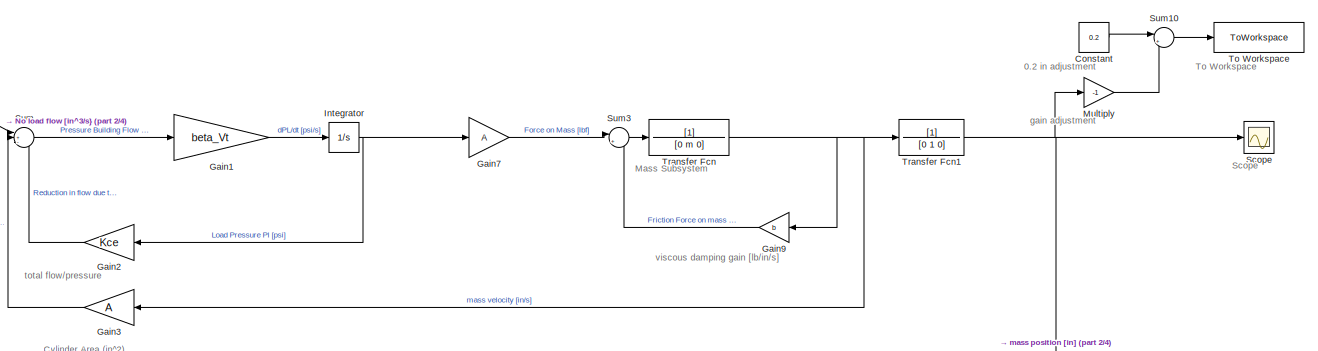
[diagram: root canvas - part 1/4, top right region]
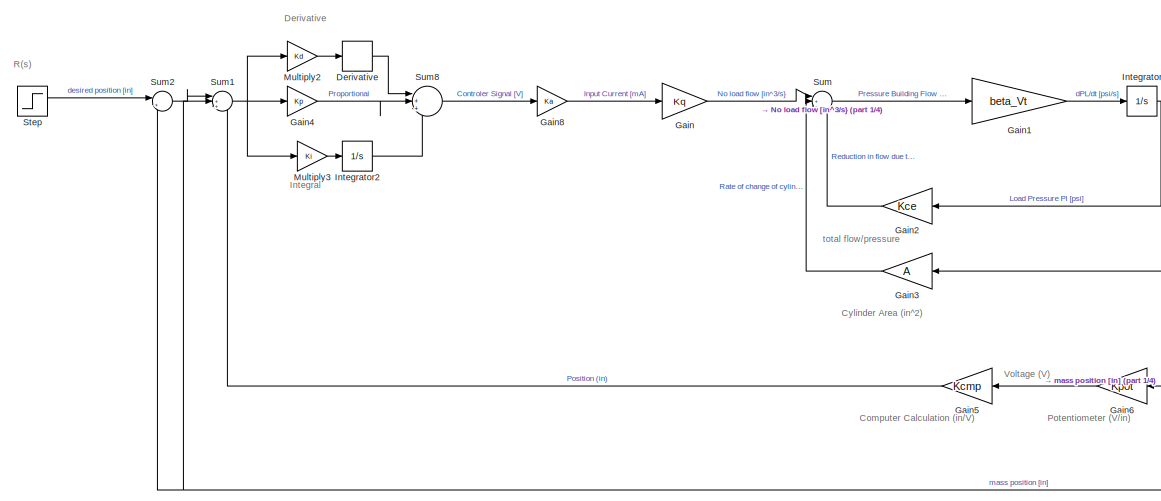
[diagram: root canvas - part 2/4, top left region]
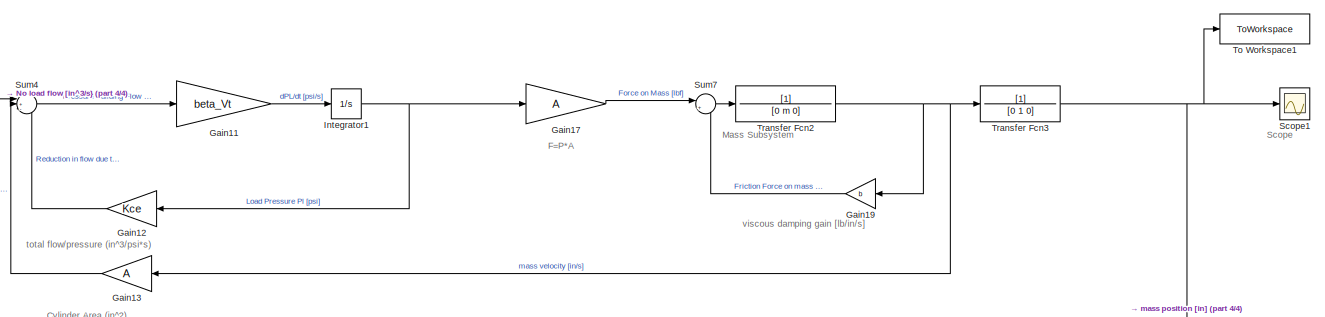
[diagram: root canvas - part 3/4, bottom right region]
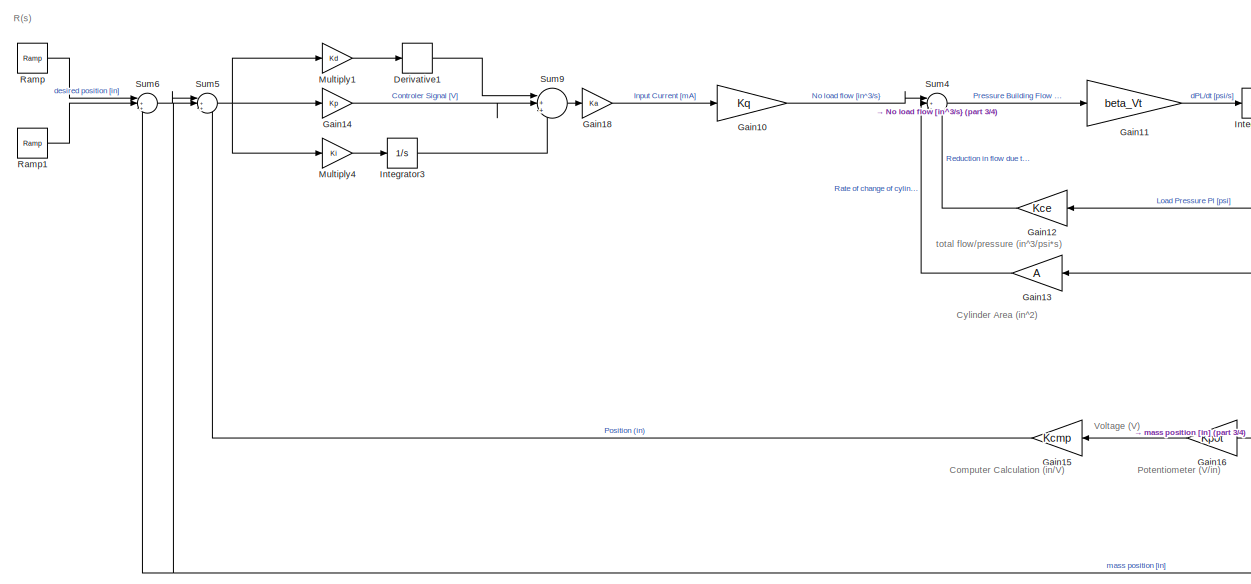
[diagram: root canvas - part 4/4, bottom left region]
MODEL slx_18d2e19fb843
KIND model
CONFIG AbsTol = auto
CONFIG EnableMultiTasking = off
CONFIG FixedStep = auto
CONFIG MaxStep = auto
CONFIG MinStep = auto
CONFIG RelTol = 1e-9
CONFIG SampleTimeConstraint = Unconstrained
CONFIG SolverName = VariableStepAuto
CONFIG StartTime = 0.0
CONFIG StopTime = 50
BLOCK [Constant] Constant
  Value = 0.2
BLOCK [Derivative] Derivative
BLOCK [Derivative] Derivative1
BLOCK [Gain] Gain
  Gain = Kq
BLOCK [Gain] Gain1
  Gain = beta_Vt
BLOCK [Gain] Gain10
  Gain = Kq
BLOCK [Gain] Gain11
  Gain = beta_Vt
BLOCK [Gain] Gain12
  Gain = Kce
BLOCK [Gain] Gain13
  Gain = A
BLOCK [Gain] Gain14
  Gain = Kp
BLOCK [Gain] Gain15
  Gain = Kcmp
BLOCK [Gain] Gain16
  Gain = Kpot
BLOCK [Gain] Gain17
  Gain = A
BLOCK [Gain] Gain18
  Gain = Ka
BLOCK [Gain] Gain19
  Gain = b
BLOCK [Gain] Gain2
  Gain = Kce
BLOCK [Gain] Gain3
  Gain = A
BLOCK [Gain] Gain4
  Gain = Kp
BLOCK [Gain] Gain5
  Gain = Kcmp
BLOCK [Gain] Gain6
  Gain = Kpot
BLOCK [Gain] Gain7
  Gain = A
BLOCK [Gain] Gain8
  Gain = Ka
BLOCK [Gain] Gain9
  Gain = b
BLOCK [Integrator] Integrator
BLOCK [Integrator] Integrator1
BLOCK [Integrator] Integrator2
BLOCK [Integrator] Integrator3
BLOCK [Gain] Multiply
  Gain = -1
BLOCK [Gain] Multiply1
  Gain = Kd
BLOCK [Gain] Multiply2
  Gain = Kd
BLOCK [Gain] Multiply3
  Gain = Ki
BLOCK [Gain] Multiply4
  Gain = Ki
BLOCK [Reference] Ramp  REF=simulink/Sources/Ramp
  SourceBlock = simulink/Sources/Ramp
  SourceType = Ramp
BLOCK [Reference] Ramp1  REF=simulink/Sources/Ramp
  SourceBlock = simulink/Sources/Ramp
  SourceType = Ramp
BLOCK [Scope] Scope
  Floating = off
  NumInputPorts = 1
  ScopeSpecificationString = Simulink.scopes.TimeScopeBlockCfg('CurrentConfiguration', extmgr.ConfigurationSet(extmgr.Configuration('Core','General UI',true),extmgr.Configuration('Core','Source UI',true),extmgr.Configuration('Sources','WiredSimulink',true),extmgr.Configuration('Visuals','Time Domain',true,'SerializedDisplays',{struct('MinYLimReal','-0.12506','MaxYLimReal','1.12557','YLabelReal','','MinYLimMag','0.00000','MaxY...<+1361ch>
BLOCK [Scope] Scope1
  Floating = off
  NumInputPorts = 1
  ScopeSpecificationString = Simulink.scopes.TimeScopeBlockCfg('CurrentConfiguration', extmgr.ConfigurationSet(extmgr.Configuration('Core','General UI',true),extmgr.Configuration('Core','Source UI',true),extmgr.Configuration('Sources','WiredSimulink',true,'DataLoggingVariableName','ScopeData1'),extmgr.Configuration('Visuals','Time Domain',true,'SerializedDisplays',{struct('MinYLimReal','-0.12506','MaxYLimReal','1.12557','YLab...<+1400ch>
BLOCK [Step] Step
  After = 0.2
  SampleTime = 0
  Time = 2
BLOCK [Sum] Sum
  Inputs = |+--
BLOCK [Sum] Sum1
  Inputs = |++-
BLOCK [Sum] Sum10
  Inputs = |++
BLOCK [Sum] Sum2
  Inputs = |+-
BLOCK [Sum] Sum3
  Inputs = |+-
BLOCK [Sum] Sum4
  Inputs = |+--
BLOCK [Sum] Sum5
  Inputs = |++-
BLOCK [Sum] Sum6
  Inputs = |++-
BLOCK [Sum] Sum7
  Inputs = |+-
BLOCK [Sum] Sum8
  Inputs = |+++
BLOCK [Sum] Sum9
  Inputs = |+++
BLOCK [ToWorkspace] To Workspace
  FixptAsFi = on
  MaxDataPoints = inf
  SampleTime = -1
  VariableName = step
BLOCK [ToWorkspace] To Workspace1
  FixptAsFi = on
  MaxDataPoints = inf
  SampleTime = -1
  VariableName = ramp
BLOCK [TransferFcn] Transfer Fcn
  Denominator = [0 m 0]
BLOCK [TransferFcn] Transfer Fcn1
  Denominator = [0 1 0]
BLOCK [TransferFcn] Transfer Fcn2
  Denominator = [0 m 0]
BLOCK [TransferFcn] Transfer Fcn3
  Denominator = [0 1 0]
ANNOTATION (root): 0.2 in adjustment
ANNOTATION (root): Computer Calculation (in/V)
ANNOTATION (root): Cylinder Area (in^2)
ANNOTATION (root): Derivative
ANNOTATION (root): F=P*A
ANNOTATION (root): Integral
ANNOTATION (root): Mass Subsystem
ANNOTATION (root): Potentiometer (V/in)
ANNOTATION (root): R(s)
ANNOTATION (root): Scope
ANNOTATION (root): To Workspace
ANNOTATION (root): Voltage (V)
ANNOTATION (root): gain adjustment
ANNOTATION (root): total flow/pressure
ANNOTATION (root): total flow/pressure (in^3/psi*s)
ANNOTATION (root): viscous damping gain [lb/in/s]
LINE Constant:1 -> Sum10:1
LINE Derivative1:1 -> Sum9:1
LINE Derivative:1 -> Sum8:1
LINE Gain10:1 -> Sum4:1
LINE Gain11:1 -> Integrator1:1
LINE Gain12:1 -> Sum4:3
LINE Gain13:1 -> Sum4:2
LINE Gain14:1 -> Sum9:2
LINE Gain15:1 -> Sum5:3
LINE Gain16:1 -> Gain15:1
LINE Gain17:1 -> Sum7:1
LINE Gain18:1 -> Gain10:1
LINE Gain19:1 -> Sum7:2
LINE Gain1:1 -> Integrator:1
LINE Gain2:1 -> Sum:3
LINE Gain3:1 -> Sum:2
LINE Gain4:1 -> Sum8:2
LINE Gain5:1 -> Sum1:3
LINE Gain6:1 -> Gain5:1
LINE Gain7:1 -> Sum3:1
LINE Gain8:1 -> Gain:1
LINE Gain9:1 -> Sum3:2
LINE Gain:1 -> Sum:1
NET Integrator1:1 -> Gain12:1, Gain17:1
LINE Integrator2:1 -> Sum8:3
LINE Integrator3:1 -> Sum9:3
NET Integrator:1 -> Gain2:1, Gain7:1
LINE Multiply1:1 -> Derivative1:1
LINE Multiply2:1 -> Derivative:1
LINE Multiply3:1 -> Integrator2:1
LINE Multiply4:1 -> Integrator3:1
LINE Multiply:1 -> Sum10:2
LINE Ramp1:1 -> Sum6:2
LINE Ramp:1 -> Sum6:1
LINE Step:1 -> Sum2:1
LINE Sum10:1 -> To Workspace:1
NET Sum1:1 -> Gain4:1, Multiply2:1, Multiply3:1
LINE Sum2:1 -> Sum1:1
LINE Sum3:1 -> Transfer Fcn:1
LINE Sum4:1 -> Gain11:1
NET Sum5:1 -> Gain14:1, Multiply1:1, Multiply4:1
LINE Sum6:1 -> Sum5:1
LINE Sum7:1 -> Transfer Fcn2:1
LINE Sum8:1 -> Gain8:1
LINE Sum9:1 -> Gain18:1
LINE Sum:1 -> Gain1:1
NET Transfer Fcn1:1 -> Gain6:1, Multiply:1, Scope:1, Sum1:2, Sum2:2
NET Transfer Fcn2:1 -> Gain13:1, Gain19:1, Transfer Fcn3:1
NET Transfer Fcn3:1 -> Gain16:1, Scope1:1, Sum5:2, Sum6:3, To Workspace1:1
NET Transfer Fcn:1 -> Gain3:1, Gain9:1, Transfer Fcn1:1
note: NET lines group one-source signal fan-out (src -> all destinations, sorted); 1:1 wires keep LINE
